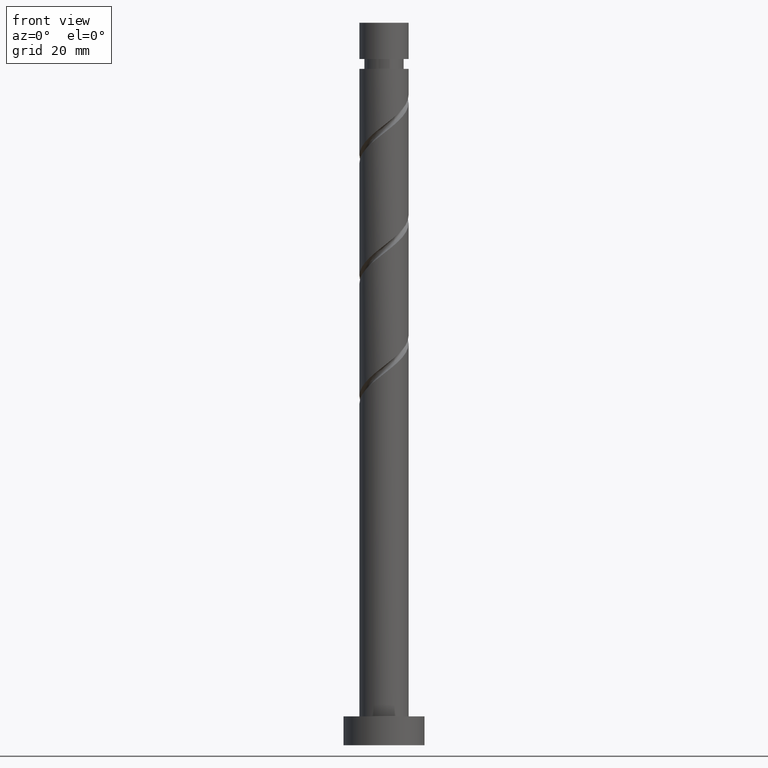
[diagram: clean part render]
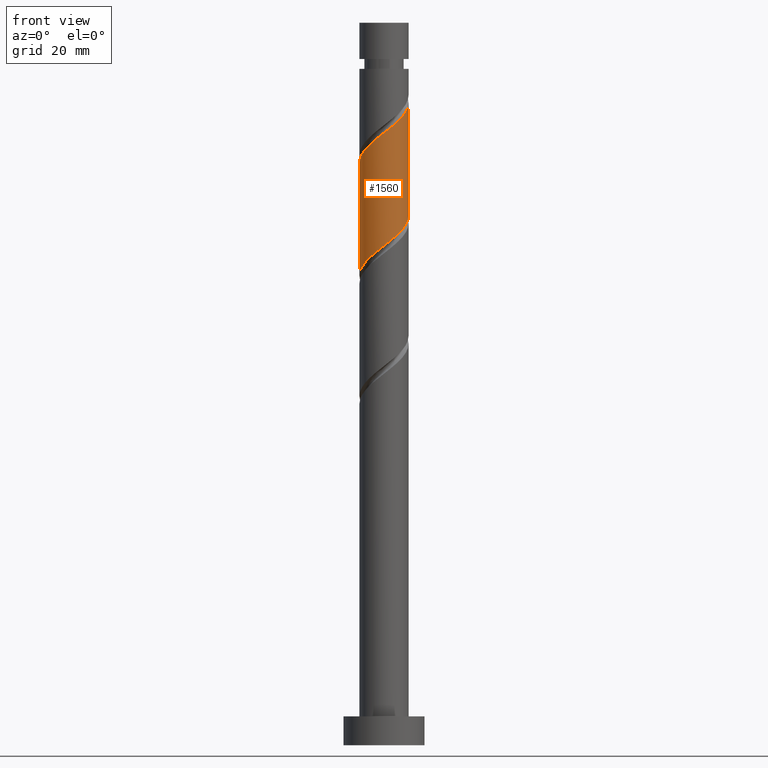
[diagram: same view with one face highlighted and labeled with its STEP entity id]
A machine part, front view. The second image highlights one B-rep face of the part: STEP entity #1560.
In plain terms, the highlighted cylindrical surface (edge-blend (fillet) strip) has radius 4.25 mm, axis along (-0, -0, -1).
Its self-contained STEP definition (entity closure, byte-faithful):
#29 = VERTEX_POINT ( 'NONE', #552 ) ;
#67 = CARTESIAN_POINT ( 'NONE',  ( 0.1860681275889342901, -4.298951949102669090, 106.0930692903374251 ) ) ;
#81 = CARTESIAN_POINT ( 'NONE',  ( 0.4827098887333978738, -4.222498213536506562, 86.82223595700408225 ) ) ;
#85 = CARTESIAN_POINT ( 'NONE',  ( 0.8457393215406288078, -4.165000000000005365, 106.6139026236707394 ) ) ;
#135 = DIRECTION ( 'NONE',  ( -0.000000000000000000, -0.000000000000000000, -1.000000000000000000 ) ) ;
#166 = EDGE_CURVE ( 'NONE', #573, #193, #241, .T. ) ;
#189 = CARTESIAN_POINT ( 'NONE',  ( 1.763908091860643124, -3.866668882057078704, 87.86390262367073944 ) ) ;
#193 = VERTEX_POINT ( 'NONE', #882 ) ;
#241 = LINE ( 'NONE', #736, #1473 ) ;
#243 = ORIENTED_EDGE ( 'NONE', *, *, #1002, .F. ) ;
#304 = CARTESIAN_POINT ( 'NONE',  ( 4.164999999999999147, -0.8457393215406295850, 90.98890262367073944 ) ) ;
#309 = CARTESIAN_POINT ( 'NONE',  ( 2.677392833327505883, -3.368557083506915184, 108.1764026236707537 ) ) ;
#315 = CARTESIAN_POINT ( 'NONE',  ( -3.368557083506915184, -2.677392833327506327, 102.9680692903374108 ) ) ;
#317 = CARTESIAN_POINT ( 'NONE',  ( -0.8457393215406293629, -4.164999999999999147, 85.78056929033742506 ) ) ;
#350 = VECTOR ( 'NONE', #939, 1000.000000000000000 ) ;
#433 = CARTESIAN_POINT ( 'NONE',  ( 1.151487905055731842, -4.146044477970347586, 87.34306929033743927 ) ) ;
#455 = CARTESIAN_POINT ( 'NONE',  ( 3.368557083506908967, -2.677392833327504551, 89.42640262367073944 ) ) ;
#472 = VERTEX_POINT ( 'NONE', #1177 ) ;
#552 = CARTESIAN_POINT ( 'NONE',  ( -4.249999999999999112, -5.037682535157162968E-15, 81.23703839847436825 ) ) ;
#560 = CARTESIAN_POINT ( 'NONE',  ( 3.132343059735660518, -2.872442681086236238, 108.6972359570040823 ) ) ;
#569 = CARTESIAN_POINT ( 'NONE',  ( 3.699802567202122194, -2.091401674409913980, 89.94723595700406804 ) ) ;
#573 = VERTEX_POINT ( 'NONE', #1451 ) ;
#576 = CARTESIAN_POINT ( 'NONE',  ( -4.222498213536506562, -0.4827098887333983179, 81.61390262367073944 ) ) ;
#578 = CARTESIAN_POINT ( 'NONE',  ( 2.091401674409914868, -3.699802567202127079, 107.6555692903374108 ) ) ;
#614 = DIRECTION ( 'NONE',  ( -0.000000000000000000, -0.000000000000000000, -1.000000000000000000 ) ) ;
#678 = LINE ( 'NONE', #1052, #350 ) ;
#690 = CARTESIAN_POINT ( 'NONE',  ( -0.1860681275889359276, -4.298951949102664649, 86.30140262367073944 ) ) ;
#693 = CARTESIAN_POINT ( 'NONE',  ( -2.872442681086236238, -3.132343059735660518, 103.4889026236707110 ) ) ;
#700 = CARTESIAN_POINT ( 'NONE',  ( 4.222498213536511003, -0.4827098887334005384, 110.7805692903374108 ) ) ;
#703 = CARTESIAN_POINT ( 'NONE',  ( -3.132343059735657409, -2.872442681086231797, 83.69723595700409646 ) ) ;
#730 = CARTESIAN_POINT ( 'NONE',  ( 0.000000000000000000, 0.000000000000000000, 125.0000000000000000 ) ) ;
#736 = CARTESIAN_POINT ( 'NONE',  ( 4.250000000000000000, 5.204748896376250699E-16, 125.0000000000000000 ) ) ;
#783 = CARTESIAN_POINT ( 'NONE',  ( -4.031048050897339863, -1.505410515492323409, 101.9264026236707110 ) ) ;
#793 = CARTESIAN_POINT ( 'NONE',  ( 4.249999999999999112, 4.467944629395341012E-15, 91.65370506514102544 ) ) ;
#799 = CARTESIAN_POINT ( 'NONE',  ( 3.866668882057083589, -1.763908091860647342, 109.7389026236707252 ) ) ;
#802 = CARTESIAN_POINT ( 'NONE',  ( -3.866668882057078704, -1.763908091860643124, 82.65556929033742506 ) ) ;
#819 = CARTESIAN_POINT ( 'NONE',  ( -2.091401674409913980, -3.699802567202122194, 84.73890262367075366 ) ) ;
#882 = CARTESIAN_POINT ( 'NONE',  ( 4.249999999999999112, 4.467944629395341012E-15, 91.65370506514102544 ) ) ;
#909 = FACE_OUTER_BOUND ( 'NONE', #1440, .T. ) ;
#914 = CYLINDRICAL_SURFACE ( 'NONE', #1169, 4.250000000000000000 ) ;
#921 = CARTESIAN_POINT ( 'NONE',  ( -1.763908091860647342, -3.866668882057083589, 104.5305692903374251 ) ) ;
#925 = CARTESIAN_POINT ( 'NONE',  ( -4.146044477970347586, -1.151487905055732286, 82.13473595700408225 ) ) ;
#931 = CARTESIAN_POINT ( 'NONE',  ( -4.250000000000000000, -0.2421383841473411791, 81.42654948768164047 ) ) ;
#936 = CARTESIAN_POINT ( 'NONE',  ( 4.250000000000005329, 2.998620556641149087E-15, 111.1574335155338389 ) ) ;
#939 = DIRECTION ( 'NONE',  ( -0.000000000000000000, -0.000000000000000000, -1.000000000000000000 ) ) ;
#946 = CARTESIAN_POINT ( 'NONE',  ( -1.505410515492322743, -4.031048050897332757, 85.25973595700409646 ) ) ;
#1002 = EDGE_CURVE ( 'NONE', #193, #29, #1322, .T. ) ;
#1038 = CARTESIAN_POINT ( 'NONE',  ( -4.249999999999999112, -5.037682535157162968E-15, 81.23703839847436825 ) ) ;
#1049 = CARTESIAN_POINT ( 'NONE',  ( 3.587293286143814264, -2.376328278665559512, 109.2180692903374108 ) ) ;
#1052 = CARTESIAN_POINT ( 'NONE',  ( -4.250000000000000000, 0.000000000000000000, 125.0000000000000000 ) ) ;
#1053 = EDGE_CURVE ( 'NONE', #472, #29, #678, .T. ) ;
#1153 = CARTESIAN_POINT ( 'NONE',  ( -4.250000000000004441, -0.4271410714851691659, 101.0750714242750092 ) ) ;
#1155 = CARTESIAN_POINT ( 'NONE',  ( 4.250000000000000000, -0.4271410714851642809, 91.31940048973318369 ) ) ;
#1169 = AXIS2_PLACEMENT_3D ( 'NONE', #730, #614, #1562 ) ;
#1171 = CARTESIAN_POINT ( 'NONE',  ( -0.4827098887334003718, -4.222498213536511003, 105.5722359570040680 ) ) ;
#1177 = CARTESIAN_POINT ( 'NONE',  ( -4.250000000000005329, 2.458868856445742094E-15, 100.7407668488671675 ) ) ;
#1182 = CARTESIAN_POINT ( 'NONE',  ( 2.376328278665554183, -3.587293286143810711, 88.38473595700408225 ) ) ;
#1273 = CARTESIAN_POINT ( 'NONE',  ( -2.677392833327503663, -3.368557083506908967, 84.21806929033742506 ) ) ;
#1279 = CARTESIAN_POINT ( 'NONE',  ( -1.151487905055735173, -4.146044477970352027, 105.0514026236706968 ) ) ;
#1281 = CARTESIAN_POINT ( 'NONE',  ( 2.872442681086231797, -3.132343059735657409, 88.90556929033743927 ) ) ;
#1285 = CARTESIAN_POINT ( 'NONE',  ( 4.146044477970352027, -1.151487905055735617, 110.2597359570040396 ) ) ;
#1322 =( BOUNDED_CURVE ( )  B_SPLINE_CURVE ( 2, ( #793, #1155, #304, #1555, #569, #455, #1281, #1182, #189, #433, #81, #690, #317, #946, #819, #1273, #703, #1533, #802, #925, #576, #931, #1038 ),
 .UNSPECIFIED., .F., .T. ) 
 B_SPLINE_CURVE_WITH_KNOTS ( ( 3, 2, 2, 2, 2, 2, 2, 2, 2, 2, 2, 3 ),
 ( 0.5545322023138551382, 0.5625000000000000000, 0.5749999999999999556, 0.5875000000000000222, 0.5999999999999999778, 0.6125000000000000444, 0.6250000000000000000, 0.6374999999999999556, 0.6500000000000000222, 0.6624999999999999778, 0.6750000000000000444, 0.6795322023138551382 ),
 .UNSPECIFIED. ) 
 CURVE ( )  GEOMETRIC_REPRESENTATION_ITEM ( )  RATIONAL_B_SPLINE_CURVE ( ( 0.9039174447099327381, 0.9019565955404620361, 0.9090909090909105039, 0.8978984914501265679, 0.9090909090909105039, 0.8978984914501265679, 0.9090909090909105039, 0.8978984914501265679, 0.9090909090909105039, 0.8978984914501265679, 0.9090909090909105039, 0.8978984914501265679, 0.9090909090909105039, 0.8978984914501265679, 0.9090909090909105039, 0.8978984914501265679, 0.9090909090909105039, 0.8978984914501265679, 0.9090909090909105039, 0.8978984914501265679, 0.9090909090909105039, 0.9050328050005749247, 0.9039174447099327381 ) ) 
 REPRESENTATION_ITEM ( '' )  );
#1410 = CARTESIAN_POINT ( 'NONE',  ( 1.505410515492323409, -4.031048050897339863, 107.1347359570040823 ) ) ;
#1415 = CARTESIAN_POINT ( 'NONE',  ( -4.250000000000005329, 2.458868856445742094E-15, 100.7407668488671675 ) ) ;
#1424 =( BOUNDED_CURVE ( )  B_SPLINE_CURVE ( 2, ( #1415, #1153, #1535, #783, #1541, #315, #693, #1531, #921, #1279, #1171, #67, #85, #1410, #578, #309, #560, #1049, #799, #1285, #700, #1544, #936 ),
 .UNSPECIFIED., .F., .T. ) 
 B_SPLINE_CURVE_WITH_KNOTS ( ( 3, 2, 2, 2, 2, 2, 2, 2, 2, 2, 2, 3 ),
 ( 0.5545322023138552492, 0.5625000000000000000, 0.5749999999999999556, 0.5875000000000000222, 0.5999999999999999778, 0.6125000000000000444, 0.6250000000000000000, 0.6374999999999999556, 0.6500000000000000222, 0.6624999999999999778, 0.6750000000000000444, 0.6795322023138553602 ),
 .UNSPECIFIED. ) 
 CURVE ( )  GEOMETRIC_REPRESENTATION_ITEM ( )  RATIONAL_B_SPLINE_CURVE ( ( 0.9039174447099387333, 0.9019565955404680313, 0.9090909090909164991, 0.8978984914501325632, 0.9090909090909164991, 0.8978984914501325632, 0.9090909090909164991, 0.8978984914501325632, 0.9090909090909164991, 0.8978984914501325632, 0.9090909090909164991, 0.8978984914501325632, 0.9090909090909164991, 0.8978984914501325632, 0.9090909090909164991, 0.8978984914501325632, 0.9090909090909164991, 0.8978984914501325632, 0.9090909090909164991, 0.8978984914501325632, 0.9090909090909164991, 0.9050328050005806979, 0.9039174447099386223 ) ) 
 REPRESENTATION_ITEM ( '' )  );
#1435 = ORIENTED_EDGE ( 'NONE', *, *, #1053, .T. ) ;
#1440 = EDGE_LOOP ( 'NONE', ( #1467, #1563, #1435, #243 ) ) ;
#1451 = CARTESIAN_POINT ( 'NONE',  ( 4.250000000000005329, 2.998620556641148693E-15, 111.1574335155338389 ) ) ;
#1467 = ORIENTED_EDGE ( 'NONE', *, *, #166, .F. ) ;
#1473 = VECTOR ( 'NONE', #135, 1000.000000000000000 ) ;
#1518 = EDGE_CURVE ( 'NONE', #472, #573, #1424, .T. ) ;
#1531 = CARTESIAN_POINT ( 'NONE',  ( -2.376328278665558180, -3.587293286143813820, 104.0097359570040965 ) ) ;
#1533 = CARTESIAN_POINT ( 'NONE',  ( -3.587293286143809823, -2.376328278665554627, 83.17640262367078208 ) ) ;
#1535 = CARTESIAN_POINT ( 'NONE',  ( -4.165000000000005365, -0.8457393215406290299, 101.4055692903374251 ) ) ;
#1541 = CARTESIAN_POINT ( 'NONE',  ( -3.699802567202127079, -2.091401674409915312, 102.4472359570040823 ) ) ;
#1544 = CARTESIAN_POINT ( 'NONE',  ( 4.250000000000006217, -0.2421383841473312981, 110.9679224263265667 ) ) ;
#1555 = CARTESIAN_POINT ( 'NONE',  ( 4.031048050897332757, -1.505410515492323187, 90.46806929033741085 ) ) ;
#1560 = ADVANCED_FACE ( 'NONE', ( #909 ), #914, .T. ) ;
#1562 = DIRECTION ( 'NONE',  ( -1.000000000000000000, 0.000000000000000000, 0.000000000000000000 ) ) ;
#1563 = ORIENTED_EDGE ( 'NONE', *, *, #1518, .F. ) ;